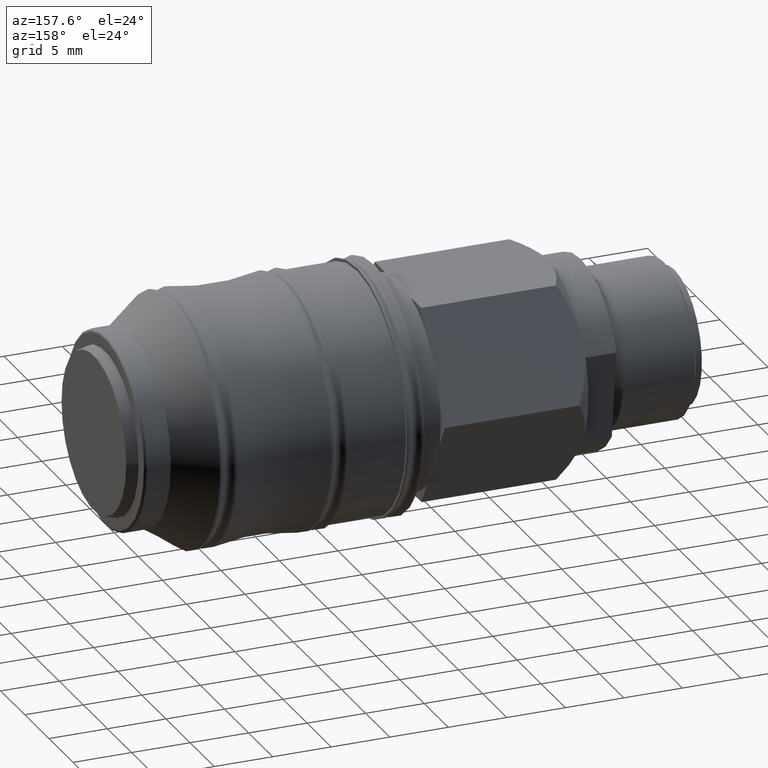
[diagram: clean part render]
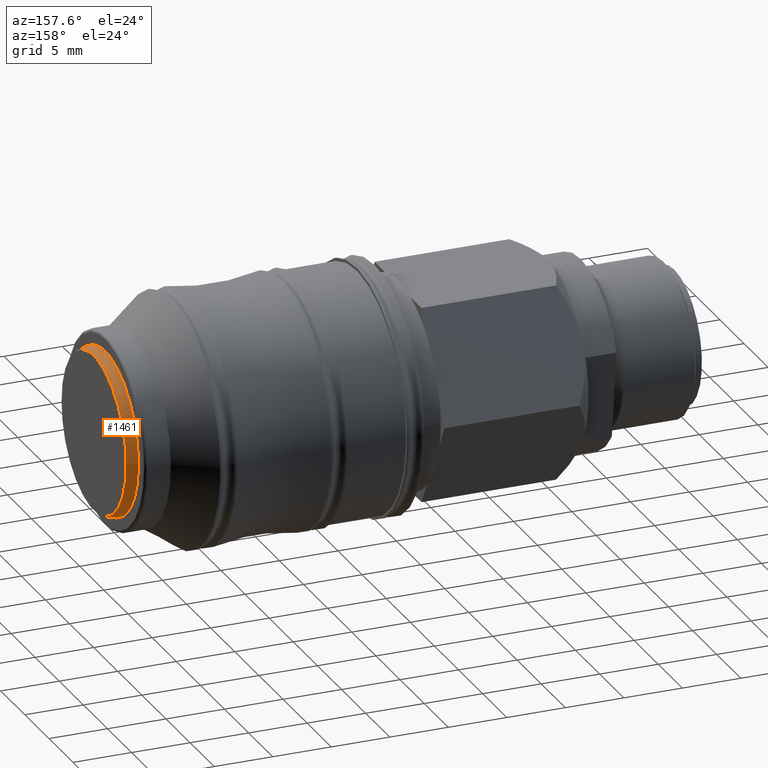
[diagram: same view with one face highlighted and labeled with its STEP entity id]
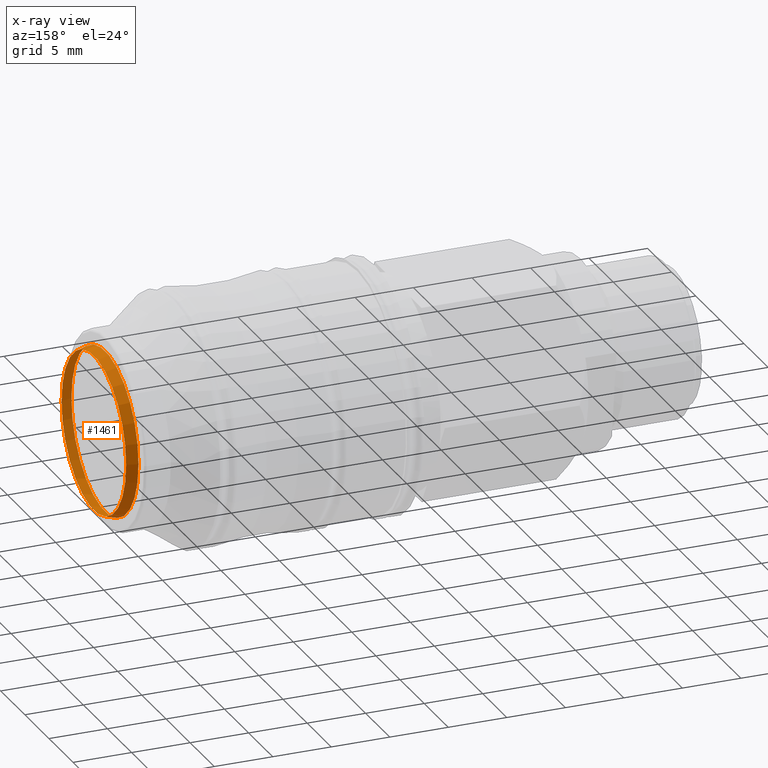
[diagram: x-ray of the same camera — body ghosted, the highlighted face saturated]
A machine part, auxiliary view. The second image highlights one B-rep face of the part: STEP entity #1461.
The next image is the same camera in x-ray: the body ghosted, the highlighted face saturated — about 0% of this face is hidden behind the body in this view.
In plain terms, the highlighted conical surface has half-angle 15 deg.
Its self-contained STEP definition (entity closure, byte-faithful):
#1434=CARTESIAN_POINT('',(38.324999999999996,0.0,0.0));
#1435=DIRECTION('',(-1.0,0.0,0.0));
#1436=DIRECTION('',(0.0,1.0,0.0));
#1437=AXIS2_PLACEMENT_3D('',#1434,#1435,#1436);
#1438=CONICAL_SURFACE('',#1437,6.822724133595218,14.999999999999995);
#1439=CARTESIAN_POINT('',(38.799999999999997,6.695448267190434,0.0));
#1440=VERTEX_POINT('',#1439);
#1441=CARTESIAN_POINT('',(38.799999999999997,0.0,0.0));
#1442=DIRECTION('',(1.0,0.0,0.0));
#1443=DIRECTION('',(0.0,1.0,0.0));
#1444=AXIS2_PLACEMENT_3D('',#1441,#1442,#1443);
#1445=CIRCLE('',#1444,6.695448267190434);
#1446=EDGE_CURVE('',#1440,#1440,#1445,.T.);
#1447=ORIENTED_EDGE('',*,*,#1446,.F.);
#1448=EDGE_LOOP('',(#1447));
#1449=FACE_OUTER_BOUND('',#1448,.T.);
#1450=CARTESIAN_POINT('',(37.849999999999994,6.950000000000001,0.0));
#1451=VERTEX_POINT('',#1450);
#1452=CARTESIAN_POINT('',(37.849999999999994,0.0,0.0));
#1453=DIRECTION('',(1.0,0.0,0.0));
#1454=DIRECTION('',(0.0,1.0,0.0));
#1455=AXIS2_PLACEMENT_3D('',#1452,#1453,#1454);
#1456=CIRCLE('',#1455,6.950000000000001);
#1457=EDGE_CURVE('',#1451,#1451,#1456,.T.);
#1458=ORIENTED_EDGE('',*,*,#1457,.T.);
#1459=EDGE_LOOP('',(#1458));
#1460=FACE_BOUND('',#1459,.T.);
#1461=ADVANCED_FACE('',(#1449,#1460),#1438,.T.);